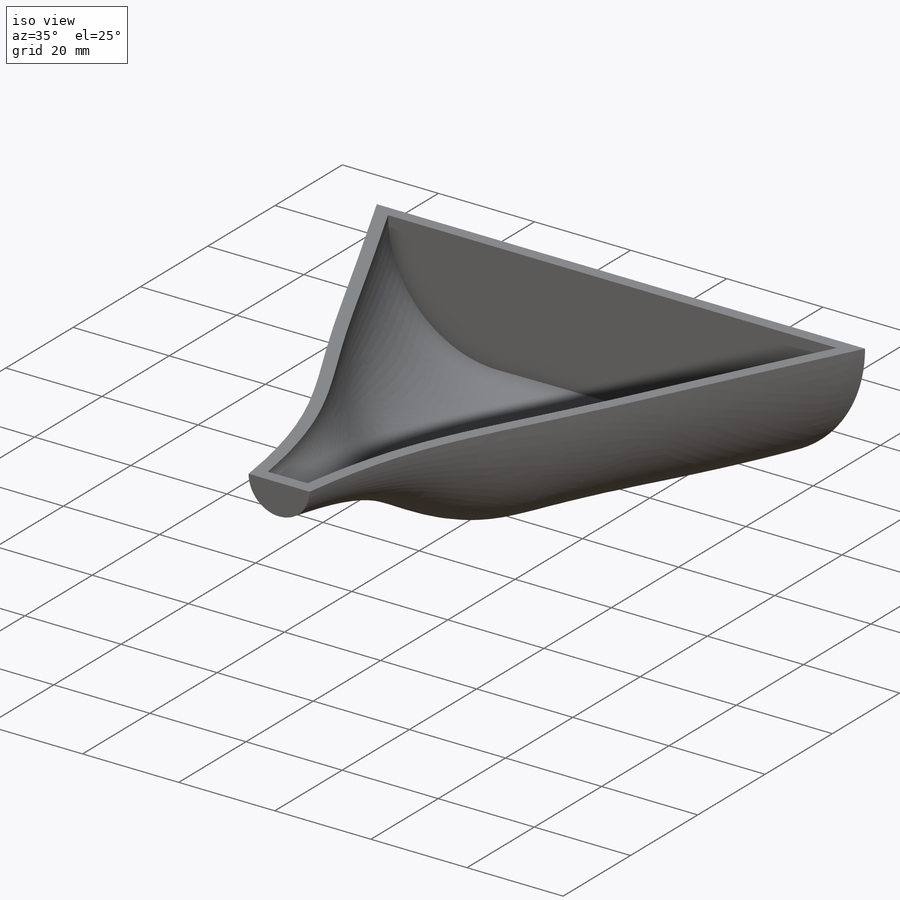
[diagram: iso view]
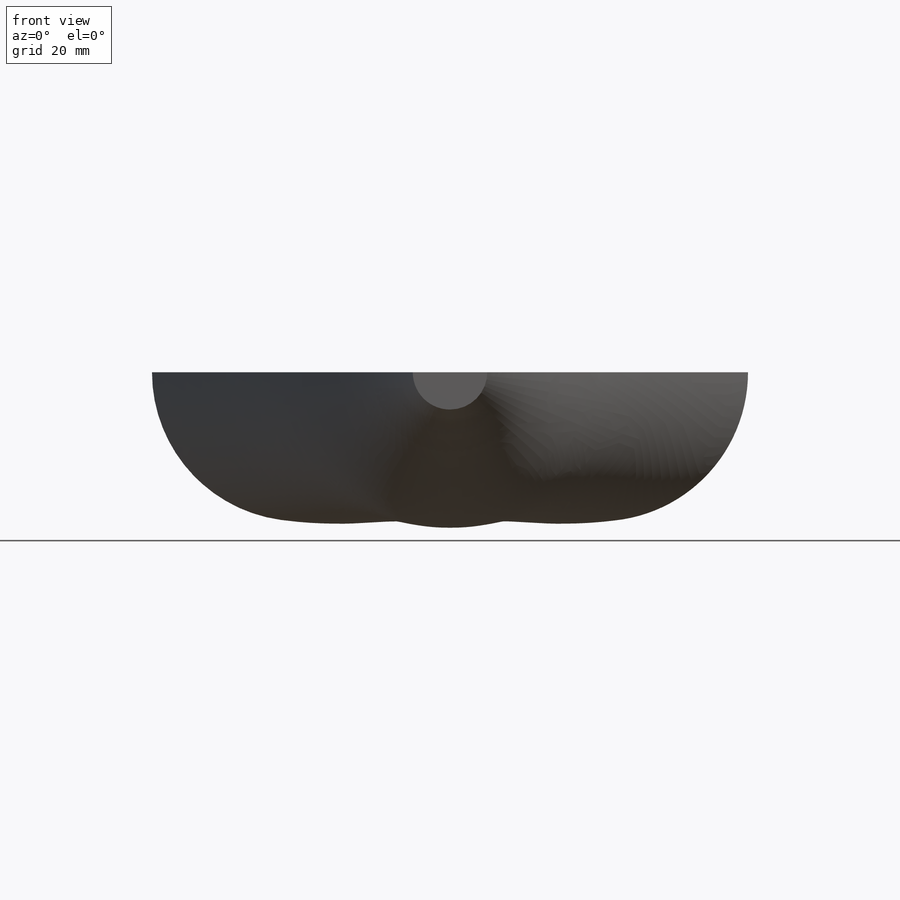
[diagram: front view]
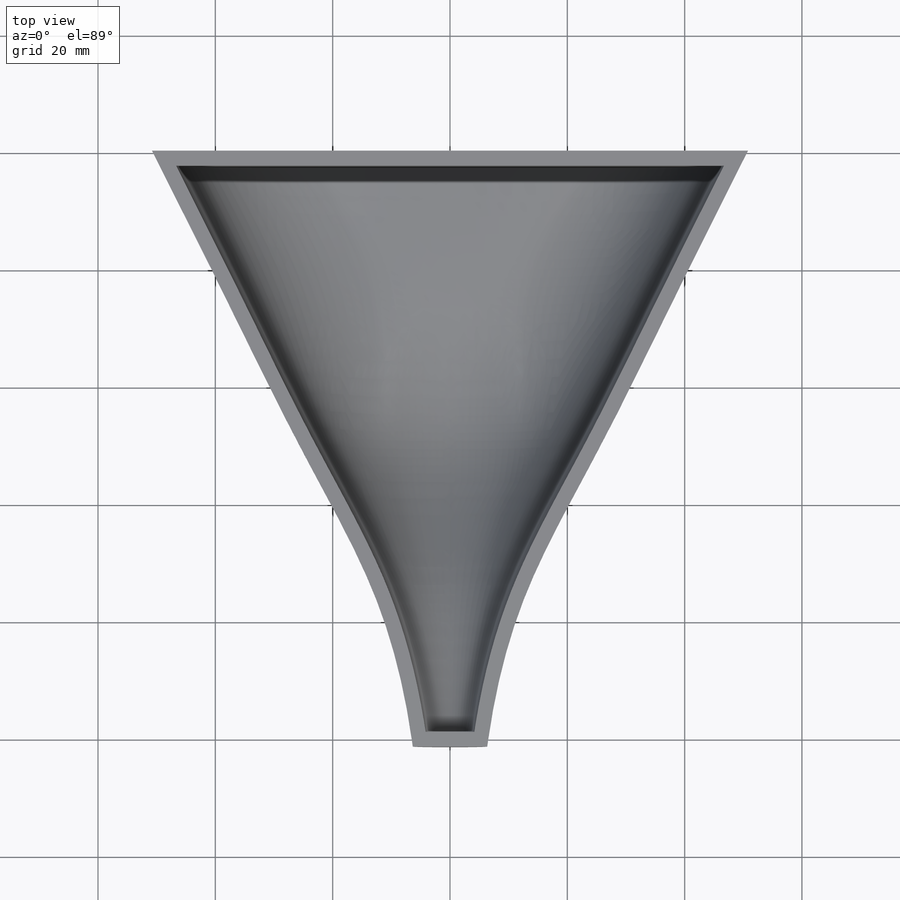
[diagram: top view]
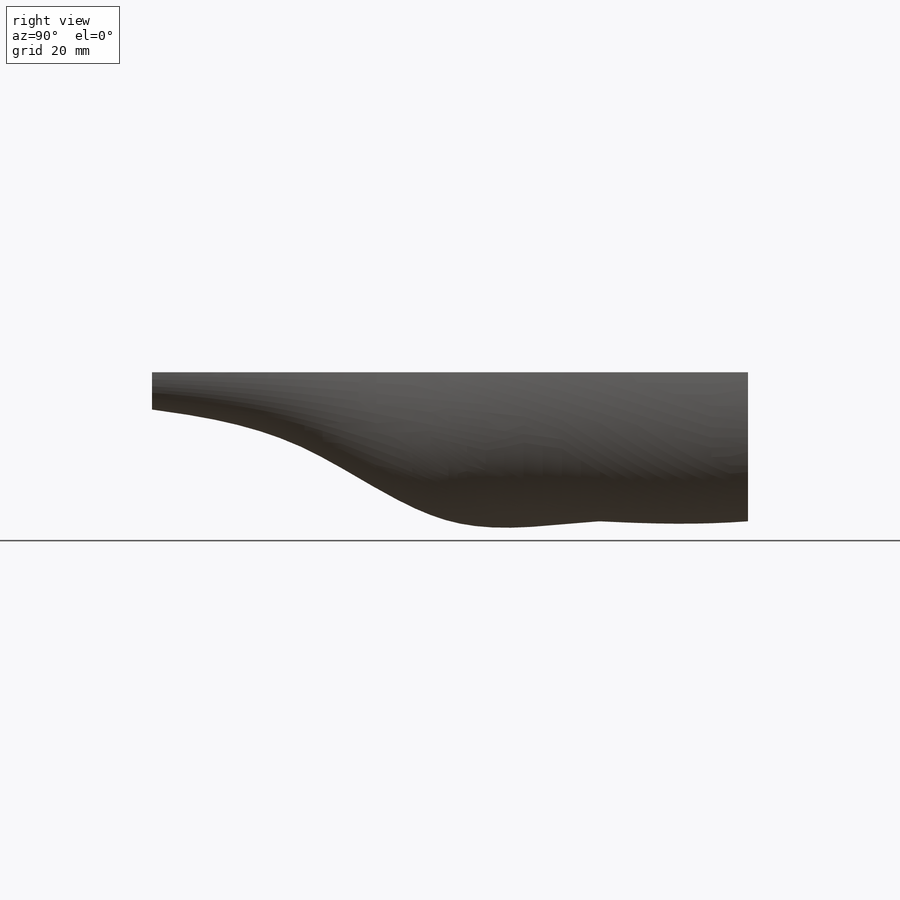
[diagram: right view]
SOLIDWORKS PART (.sldprt)
format: sldprt  version: not decoded by parser v0  size: 458,240 bytes
history: native  units: mm
features: sketch x5, plane x4, material x1, mirror x1, shell x1 (+12 scaffold rows collapsed)
feature tree (24):
  scaffold x12  (default folders/planes/origin — collapsed)
  material  "Specific Gravity 1.00"
  sketch  "Sketch1"  dims[D1=50.8mm D2=25.4mm]
  plane  "Plane1"  Offset=25.4mm
  sketch  "Sketch2"  dims[D1=38.1mm]
  plane  "Plane2"  Offset=25.4mm
  sketch  "Sketch3"  dims[D1=25.4mm D2=~22.118572mm]
  plane  "Plane3"  Offset=25.4mm
  sketch  "Sketch4"  dims[D1=12.7mm]
  plane  "Plane4"  Offset=25.4mm
  sketch  "Sketch5"  dims[D1=6.35mm]
  mirror  "Mirror1"
  shell  "Shell1"  Thickness=2.54mm
decode coverage: 6 of 7 modeling features carry decoded parameters
note: ~ marks probable driven/reference dimensions
note: suppression state not decoded; provenance and decode notes live in map.json
